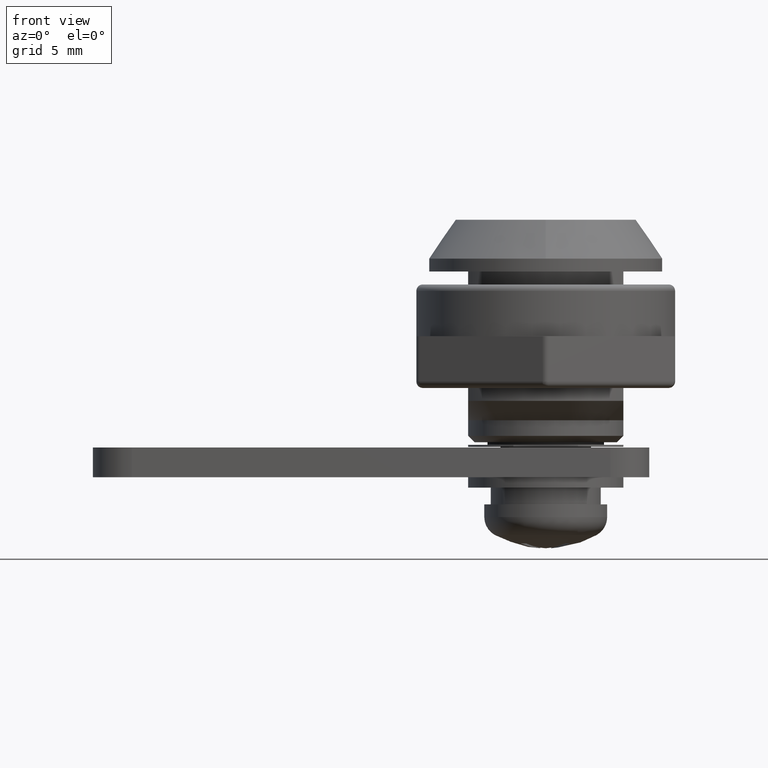
[diagram: clean part render]
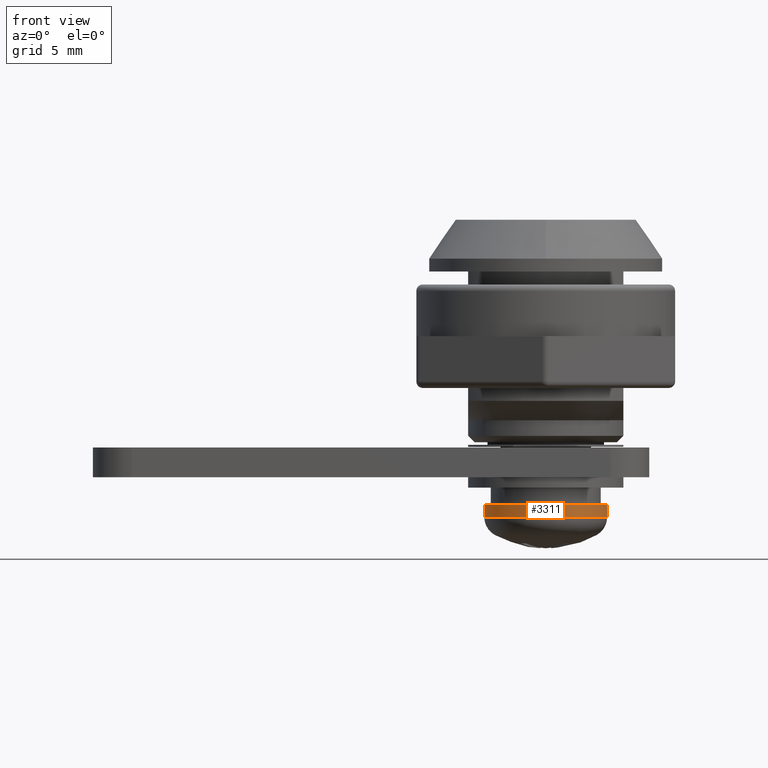
[diagram: same view with one face highlighted and labeled with its STEP entity id]
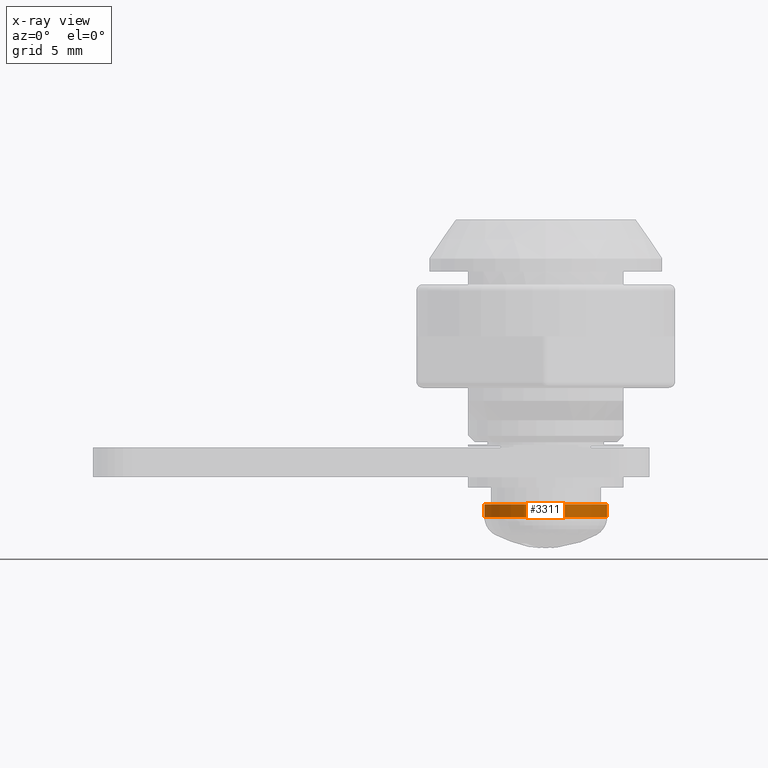
[diagram: x-ray of the same camera — body ghosted, the highlighted face saturated]
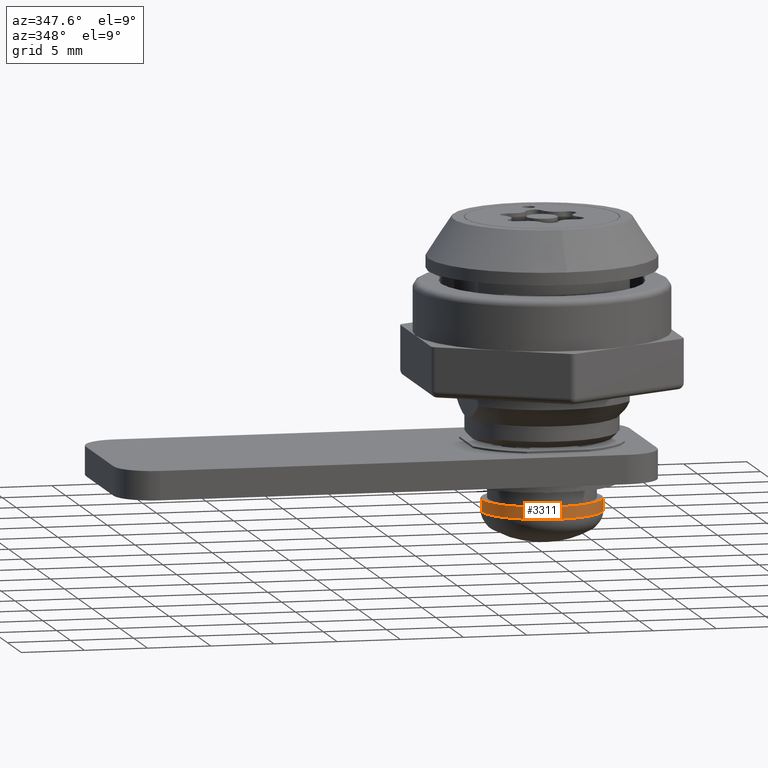
[diagram: same view with one face highlighted and labeled with its STEP entity id]
A machine part, front view. The second image highlights one B-rep face of the part: STEP entity #3311.
The next image is the same camera in x-ray: the body ghosted, the highlighted face saturated — about 0% of this face is hidden behind the body in this view.
A second angle (auxiliary view) of the same face is appended — the face is thin or edge-on in the first view.
In plain terms, the highlighted cylindrical surface (partial cylindrical patch) has radius 4.75 mm, axis along (0, 0, 1).
Its self-contained STEP definition (entity closure, byte-faithful):
#34 = CARTESIAN_POINT ( 'NONE',  ( 4.749999999999948500, 0.0000000000000000000, -1.084202172485504400E-016 ) ) ;
#150 = ORIENTED_EDGE ( 'NONE', *, *, #5134, .T. ) ;
#510 = FACE_OUTER_BOUND ( 'NONE', #4771, .T. ) ;
#554 = ORIENTED_EDGE ( 'NONE', *, *, #1705, .T. ) ;
#818 = CARTESIAN_POINT ( 'NONE',  ( 4.749999999999948500, 0.0000000000000000000, -0.9711309444312006300 ) ) ;
#900 = ORIENTED_EDGE ( 'NONE', *, *, #3108, .F. ) ;
#1260 = CIRCLE ( 'NONE', #5012, 4.749999999999948500 ) ;
#1391 = CYLINDRICAL_SURFACE ( 'NONE', #2972, 4.749999999999948500 ) ;
#1452 = VECTOR ( 'NONE', #2701, 1000.000000000000000 ) ;
#1584 = VERTEX_POINT ( 'NONE', #818 ) ;
#1651 = DIRECTION ( 'NONE',  ( -0.0000000000000000000, -0.0000000000000000000, 1.000000000000000000 ) ) ;
#1705 = EDGE_CURVE ( 'NONE', #1584, #3276, #4921, .T. ) ;
#1768 = VERTEX_POINT ( 'NONE', #1782 ) ;
#1782 = CARTESIAN_POINT ( 'NONE',  ( -4.749999999999948500, 5.817072295949864300E-016, -1.084202172485504400E-016 ) ) ;
#1852 = CARTESIAN_POINT ( 'NONE',  ( -4.749999999999948500, 5.817072295949864300E-016, -0.9711309444312006300 ) ) ;
#1896 = CARTESIAN_POINT ( 'NONE',  ( -4.749999999999948500, 5.817072295949864300E-016, 0.0000000000000000000 ) ) ;
#2230 = VECTOR ( 'NONE', #2336, 1000.000000000000000 ) ;
#2287 = CARTESIAN_POINT ( 'NONE',  ( 0.0000000000000000000, 0.0000000000000000000, -0.9711309444312006300 ) ) ;
#2336 = DIRECTION ( 'NONE',  ( -0.0000000000000000000, -0.0000000000000000000, 1.000000000000000000 ) ) ;
#2580 = VERTEX_POINT ( 'NONE', #1852 ) ;
#2701 = DIRECTION ( 'NONE',  ( -0.0000000000000000000, -0.0000000000000000000, 1.000000000000000000 ) ) ;
#2713 = DIRECTION ( 'NONE',  ( 1.000000000000000000, 0.0000000000000000000, 0.0000000000000000000 ) ) ;
#2812 = DIRECTION ( 'NONE',  ( 1.000000000000000000, 0.0000000000000000000, 0.0000000000000000000 ) ) ;
#2972 = AXIS2_PLACEMENT_3D ( 'NONE', #4972, #5417, #2812 ) ;
#3087 = AXIS2_PLACEMENT_3D ( 'NONE', #4253, #1651, #4687 ) ;
#3108 = EDGE_CURVE ( 'NONE', #1768, #3276, #3492, .T. ) ;
#3115 = CARTESIAN_POINT ( 'NONE',  ( 4.749999999999948500, 0.0000000000000000000, 0.0000000000000000000 ) ) ;
#3276 = VERTEX_POINT ( 'NONE', #34 ) ;
#3311 = ADVANCED_FACE ( 'NONE', ( #510 ), #1391, .T. ) ;
#3492 = CIRCLE ( 'NONE', #3087, 4.749999999999948500 ) ;
#4253 = CARTESIAN_POINT ( 'NONE',  ( 0.0000000000000000000, 0.0000000000000000000, -1.084202172485504400E-016 ) ) ;
#4349 = ORIENTED_EDGE ( 'NONE', *, *, #4417, .F. ) ;
#4417 = EDGE_CURVE ( 'NONE', #2580, #1768, #4517, .T. ) ;
#4517 = LINE ( 'NONE', #1896, #2230 ) ;
#4687 = DIRECTION ( 'NONE',  ( 1.000000000000000000, 0.0000000000000000000, 0.0000000000000000000 ) ) ;
#4771 = EDGE_LOOP ( 'NONE', ( #4349, #150, #554, #900 ) ) ;
#4921 = LINE ( 'NONE', #3115, #1452 ) ;
#4972 = CARTESIAN_POINT ( 'NONE',  ( 0.0000000000000000000, 0.0000000000000000000, 0.0000000000000000000 ) ) ;
#5012 = AXIS2_PLACEMENT_3D ( 'NONE', #2287, #5319, #2713 ) ;
#5134 = EDGE_CURVE ( 'NONE', #2580, #1584, #1260, .T. ) ;
#5319 = DIRECTION ( 'NONE',  ( -0.0000000000000000000, -0.0000000000000000000, 1.000000000000000000 ) ) ;
#5417 = DIRECTION ( 'NONE',  ( -0.0000000000000000000, -0.0000000000000000000, 1.000000000000000000 ) ) ;